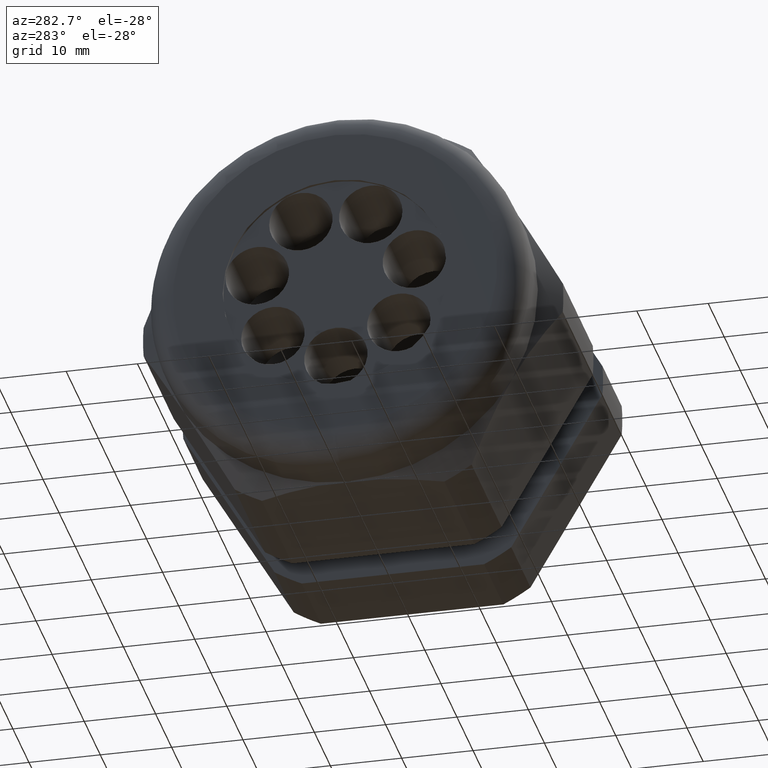
[diagram: clean part render]
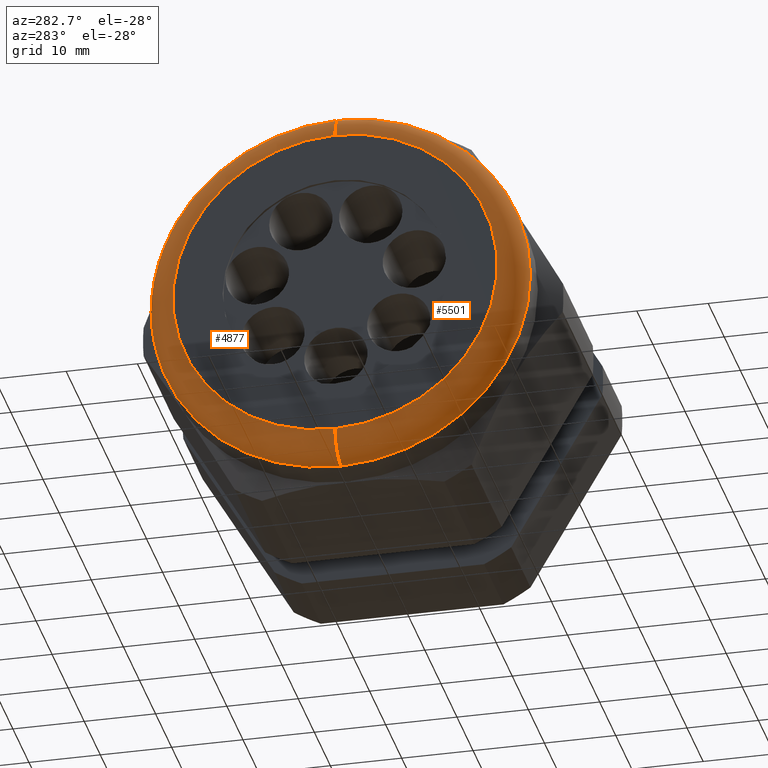
[diagram: same view with one multi-face feature highlighted, each face labeled with its STEP entity id]
A machine part, auxiliary view. The highlighted faces form ONE feature: a constant-radius fillet chain: 2 tangent blend faces with common blend radius 3.81 mm. The faces share edges in the B-rep.
Their STEP definitions:
[1] entity #5501 (Torus):
#844 = EDGE_CURVE ( 'NONE', #4893, #4869, #2515, .T. ) ;
#856 = EDGE_CURVE ( 'NONE', #4879, #4885, #2557, .T. ) ;
#2511 = DIRECTION ( 'NONE',  ( 0.0000000000000000000, 0.0000000000000000000, 1.000000000000000000 ) ) ;
#2512 = DIRECTION ( 'NONE',  ( -1.000000000000000000, 0.0000000000000000000, 0.0000000000000000000 ) ) ;
#2513 = CARTESIAN_POINT ( 'NONE',  ( -2.200000000000000200, 0.0000000000000000000, 0.0000000000000000000 ) ) ;
#2514 = AXIS2_PLACEMENT_3D ( 'NONE', #2513, #2512, #2511 ) ;
#2515 = CIRCLE ( 'NONE', #2514, 0.8949999999999999100 ) ;
#2553 = DIRECTION ( 'NONE',  ( 0.0000000000000000000, 0.0000000000000000000, 1.000000000000000000 ) ) ;
#2554 = DIRECTION ( 'NONE',  ( 1.000000000000000000, 0.0000000000000000000, 0.0000000000000000000 ) ) ;
#2555 = CARTESIAN_POINT ( 'NONE',  ( -2.049999999999999800, 0.0000000000000000000, 0.0000000000000000000 ) ) ;
#2556 = AXIS2_PLACEMENT_3D ( 'NONE', #2555, #2554, #2553 ) ;
#2557 = CIRCLE ( 'NONE', #2556, 1.044999999999999900 ) ;
#3204 = CARTESIAN_POINT ( 'NONE',  ( -2.200000000000000200, 0.0000000000000000000, 0.8949999999999999100 ) ) ;
#3226 = DIRECTION ( 'NONE',  ( 0.0000000000000000000, -1.224646799147352500E-016, 1.000000000000000000 ) ) ;
#3227 = DIRECTION ( 'NONE',  ( 0.0000000000000000000, 1.000000000000000000, 1.224646799147353200E-016 ) ) ;
#3228 = CARTESIAN_POINT ( 'NONE',  ( -2.049999999999999800, 1.096058885236880900E-016, -0.8949999999999999100 ) ) ;
#3229 = AXIS2_PLACEMENT_3D ( 'NONE', #3228, #3227, #3226 ) ;
#3230 = CIRCLE ( 'NONE', #3229, 0.1500000000000000500 ) ;
#3239 = CARTESIAN_POINT ( 'NONE',  ( -2.049999999999999800, 0.0000000000000000000, -1.044999999999999900 ) ) ;
#3251 = CARTESIAN_POINT ( 'NONE',  ( -2.049999999999999800, 1.279755905108984100E-016, 1.044999999999999900 ) ) ;
#3284 = CARTESIAN_POINT ( 'NONE',  ( -2.200000000000000200, 1.187907395172932400E-016, -0.8949999999999999100 ) ) ;
#3332 = DIRECTION ( 'NONE',  ( 0.0000000000000000000, 0.0000000000000000000, -1.000000000000000000 ) ) ;
#3333 = DIRECTION ( 'NONE',  ( 0.0000000000000000000, -1.000000000000000000, 0.0000000000000000000 ) ) ;
#3334 = CARTESIAN_POINT ( 'NONE',  ( -2.049999999999999800, 0.0000000000000000000, 0.8949999999999999100 ) ) ;
#3335 = AXIS2_PLACEMENT_3D ( 'NONE', #3334, #3333, #3332 ) ;
#3336 = CIRCLE ( 'NONE', #3335, 0.1500000000000000500 ) ;
#4254 = DIRECTION ( 'NONE',  ( 0.0000000000000000000, 0.0000000000000000000, 1.000000000000000000 ) ) ;
#4255 = DIRECTION ( 'NONE',  ( -1.000000000000000000, 0.0000000000000000000, 0.0000000000000000000 ) ) ;
#4256 = CARTESIAN_POINT ( 'NONE',  ( -2.049999999999999800, 0.0000000000000000000, 0.0000000000000000000 ) ) ;
#4257 = AXIS2_PLACEMENT_3D ( 'NONE', #4256, #4255, #4254 ) ;
#4258 = TOROIDAL_SURFACE ( 'NONE', #4257, 0.8949999999999999100, 0.1499999999999999900 ) ;
#4259 = FACE_OUTER_BOUND ( 'NONE', #5498, .T. ) ;
#4869 = VERTEX_POINT ( 'NONE', #3204 ) ;
#4879 = VERTEX_POINT ( 'NONE', #3251 ) ;
#4885 = VERTEX_POINT ( 'NONE', #3239 ) ;
#4889 = EDGE_CURVE ( 'NONE', #4885, #4893, #3230, .T. ) ;
#4893 = VERTEX_POINT ( 'NONE', #3284 ) ;
#4955 = EDGE_CURVE ( 'NONE', #4879, #4869, #3336, .T. ) ;
#5485 = ORIENTED_EDGE ( 'NONE', *, *, #856, .F. ) ;
#5492 = ORIENTED_EDGE ( 'NONE', *, *, #4889, .F. ) ;
#5494 = ORIENTED_EDGE ( 'NONE', *, *, #4955, .T. ) ;
#5498 = EDGE_LOOP ( 'NONE', ( #5492, #5485, #5494, #5541 ) ) ;
#5501 = ADVANCED_FACE ( 'NONE', ( #4259 ), #4258, .T. ) ;
#5541 = ORIENTED_EDGE ( 'NONE', *, *, #844, .F. ) ;
[2] entity #4877 (Torus):
#3194 = TOROIDAL_SURFACE ( 'NONE', #3255, 0.8949999999999999100, 0.1499999999999999900 ) ;
#3195 = CARTESIAN_POINT ( 'NONE',  ( -2.049999999999999800, 0.0000000000000000000, 0.0000000000000000000 ) ) ;
#3196 = FACE_OUTER_BOUND ( 'NONE', #4871, .T. ) ;
#3204 = CARTESIAN_POINT ( 'NONE',  ( -2.200000000000000200, 0.0000000000000000000, 0.8949999999999999100 ) ) ;
#3226 = DIRECTION ( 'NONE',  ( 0.0000000000000000000, -1.224646799147352500E-016, 1.000000000000000000 ) ) ;
#3227 = DIRECTION ( 'NONE',  ( 0.0000000000000000000, 1.000000000000000000, 1.224646799147353200E-016 ) ) ;
#3228 = CARTESIAN_POINT ( 'NONE',  ( -2.049999999999999800, 1.096058885236880900E-016, -0.8949999999999999100 ) ) ;
#3229 = AXIS2_PLACEMENT_3D ( 'NONE', #3228, #3227, #3226 ) ;
#3230 = CIRCLE ( 'NONE', #3229, 0.1500000000000000500 ) ;
#3239 = CARTESIAN_POINT ( 'NONE',  ( -2.049999999999999800, 0.0000000000000000000, -1.044999999999999900 ) ) ;
#3251 = CARTESIAN_POINT ( 'NONE',  ( -2.049999999999999800, 1.279755905108984100E-016, 1.044999999999999900 ) ) ;
#3253 = DIRECTION ( 'NONE',  ( 0.0000000000000000000, 0.0000000000000000000, 1.000000000000000000 ) ) ;
#3254 = DIRECTION ( 'NONE',  ( -1.000000000000000000, 0.0000000000000000000, 0.0000000000000000000 ) ) ;
#3255 = AXIS2_PLACEMENT_3D ( 'NONE', #3195, #3254, #3253 ) ;
#3279 = DIRECTION ( 'NONE',  ( 0.0000000000000000000, 0.0000000000000000000, 1.000000000000000000 ) ) ;
#3280 = DIRECTION ( 'NONE',  ( 1.000000000000000000, 0.0000000000000000000, 0.0000000000000000000 ) ) ;
#3281 = CARTESIAN_POINT ( 'NONE',  ( -2.049999999999999800, 0.0000000000000000000, 0.0000000000000000000 ) ) ;
#3282 = AXIS2_PLACEMENT_3D ( 'NONE', #3281, #3280, #3279 ) ;
#3283 = CIRCLE ( 'NONE', #3282, 1.044999999999999900 ) ;
#3284 = CARTESIAN_POINT ( 'NONE',  ( -2.200000000000000200, 1.187907395172932400E-016, -0.8949999999999999100 ) ) ;
#3320 = DIRECTION ( 'NONE',  ( 0.0000000000000000000, 0.0000000000000000000, 1.000000000000000000 ) ) ;
#3321 = DIRECTION ( 'NONE',  ( -1.000000000000000000, 0.0000000000000000000, 0.0000000000000000000 ) ) ;
#3322 = AXIS2_PLACEMENT_3D ( 'NONE', #3328, #3321, #3320 ) ;
#3323 = CIRCLE ( 'NONE', #3322, 0.8949999999999999100 ) ;
#3328 = CARTESIAN_POINT ( 'NONE',  ( -2.200000000000000200, 0.0000000000000000000, 0.0000000000000000000 ) ) ;
#3332 = DIRECTION ( 'NONE',  ( 0.0000000000000000000, 0.0000000000000000000, -1.000000000000000000 ) ) ;
#3333 = DIRECTION ( 'NONE',  ( 0.0000000000000000000, -1.000000000000000000, 0.0000000000000000000 ) ) ;
#3334 = CARTESIAN_POINT ( 'NONE',  ( -2.049999999999999800, 0.0000000000000000000, 0.8949999999999999100 ) ) ;
#3335 = AXIS2_PLACEMENT_3D ( 'NONE', #3334, #3333, #3332 ) ;
#3336 = CIRCLE ( 'NONE', #3335, 0.1500000000000000500 ) ;
#4869 = VERTEX_POINT ( 'NONE', #3204 ) ;
#4871 = EDGE_LOOP ( 'NONE', ( #4875, #4888, #4932, #4954 ) ) ;
#4875 = ORIENTED_EDGE ( 'NONE', *, *, #4896, .F. ) ;
#4877 = ADVANCED_FACE ( 'NONE', ( #3196 ), #3194, .T. ) ;
#4879 = VERTEX_POINT ( 'NONE', #3251 ) ;
#4885 = VERTEX_POINT ( 'NONE', #3239 ) ;
#4888 = ORIENTED_EDGE ( 'NONE', *, *, #4889, .T. ) ;
#4889 = EDGE_CURVE ( 'NONE', #4885, #4893, #3230, .T. ) ;
#4893 = VERTEX_POINT ( 'NONE', #3284 ) ;
#4896 = EDGE_CURVE ( 'NONE', #4885, #4879, #3283, .T. ) ;
#4932 = ORIENTED_EDGE ( 'NONE', *, *, #4957, .F. ) ;
#4954 = ORIENTED_EDGE ( 'NONE', *, *, #4955, .F. ) ;
#4955 = EDGE_CURVE ( 'NONE', #4879, #4869, #3336, .T. ) ;
#4957 = EDGE_CURVE ( 'NONE', #4869, #4893, #3323, .T. ) ;